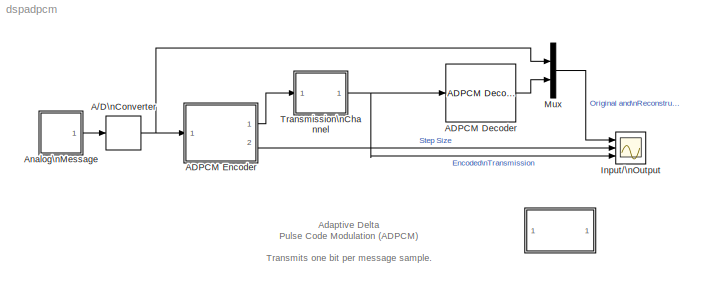
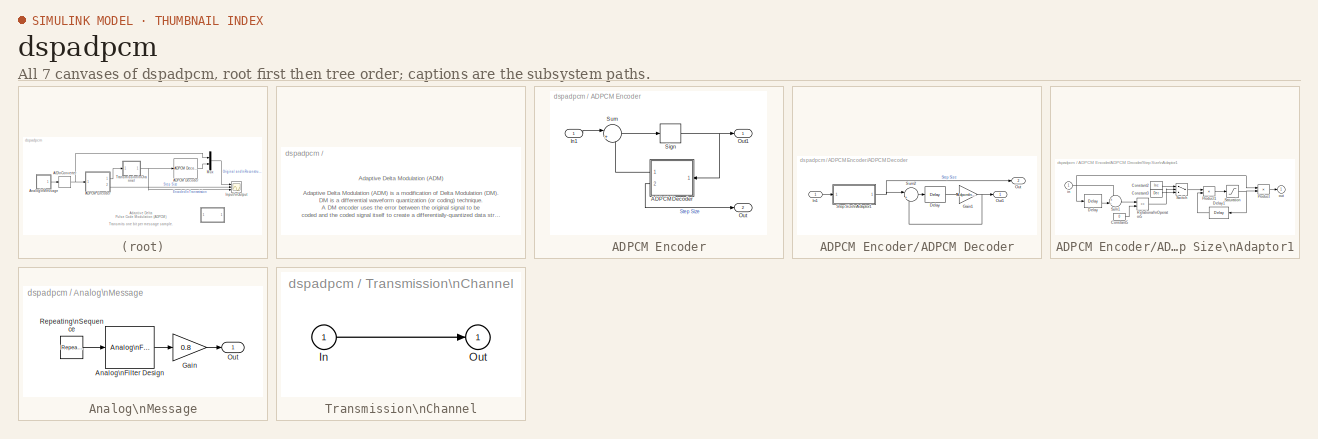
[diagram: thumbnail index - all 7 canvases of the model, root first then tree order]
MODEL dspadpcm
KIND model
CONFIG AbsTol = 1e-6
CONFIG FixedStep = 1/64000
CONFIG MaxStep = 1/64000
CONFIG MinStep = auto
CONFIG RelTol = 1e-3
CONFIG Solver = ode5
CONFIG SolverMode = SingleTasking
CONFIG StartTime = 0.0
CONFIG StopTime = .1999
BLOCK [SubSystem]  
  MaskDisplay = disp('Info')
  MaskIconFrame = on
  MaskIconOpaque = on
  MaskIconRotate = none
  MaskIconUnits = autoscale
  MaskType = ADPCM Demo Info
  Ports = []
  TreatAsAtomicUnit = off
BLOCK [ZeroOrderHold] A//D\nConverter
  SampleTime = 1/8000
BLOCK [Reference] ADPCM Decoder  REF=dspwvfmcdlib/ADPCM Decoder
  AdpcmIntTau = 0.99
  Ports = [1, 1]
  SourceBlock = dspwvfmcdlib/ADPCM Decoder
  SourceType = ADPCM Decoder
  StepAttn = .5
  StepGain = 2
  StepInit = 0.1
  StepMax = 0.5
  StepMin = 0.01
BLOCK [SubSystem] ADPCM Encoder
  AncestorBlock = dspwvfmcdlib/ADPCM Encoder
  MaskCallbackString = |||||
  MaskDisplay = disp('ADPCM\\nEncoder')
  MaskEnableString = on,on,on,on,on,on
  MaskIconFrame = on
  MaskIconOpaque = on
  MaskIconRotate = none
  MaskIconUnits = autoscale
  MaskPromptString = Step-size attenuation|Step-size gain|Maximum step size|Minimum step size|Initial step size|Integrator time constant
  MaskStyleString = edit,edit,edit,edit,edit,edit
  MaskToolTipString = on,on,on,on,on,on
  MaskTunableValueString = on,on,on,on,on,on
  MaskType = ADPCM Encoder
  MaskValueString = .5|2|0.5|0.01|0.1|0.99
  MaskVarAliasString = ,,,,,
  MaskVariables = EncStepAttn=@1;EncStepGain=@2;EncStepMax=@3;EncStepMin=@4;EncStepInit=@5;EncIntTau=@6;
  MaskVisibilityString = on,on,on,on,on,on
  Ports = [1, 2]
  TreatAsAtomicUnit = off
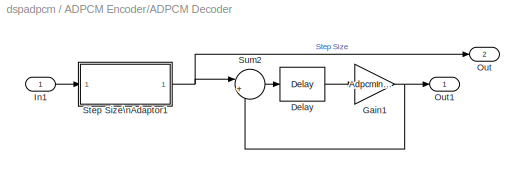
BLOCK [SubSystem] ADPCM Encoder/ADPCM Decoder
  AncestorBlock = dspwvfmcdlib/ADPCM Decoder
  MaskCallbackString = |||||
  MaskDisplay = disp('ADPCM\\nDecoder')
  MaskEnableString = on,on,on,on,on,on
  MaskIconFrame = on
  MaskIconOpaque = on
  MaskIconRotate = none
  MaskIconUnits = autoscale
  MaskPromptString = Step-size attenuation|Step-size gain|Maximum step size|Minimum step size|Initial step size|Integrator time constant
  MaskStyleString = edit,edit,edit,edit,edit,edit
  MaskToolTipString = on,on,on,on,on,on
  MaskTunableValueString = on,on,on,on,on,on
  MaskType = ADPCM Decoder
  MaskValueString = EncStepAttn|EncStepGain|EncStepMax|EncStepMin|EncStepInit|EncIntTau
  MaskVarAliasString = ,,,,,
  MaskVariables = StepAttn=@1;StepGain=@2;StepMax=@3;StepMin=@4;StepInit=@5;AdpcmIntTau=@6;
  MaskVisibilityString = on,on,on,on,on,on
  Ports = [1, 2]
  TreatAsAtomicUnit = off
BLOCK [Reference] ADPCM Encoder/ADPCM Decoder/Delay  REF=dspsigops/Delay
  Ports = [1, 1]
  SourceBlock = dspsigops/Delay
  SourceType = Delay
  delay = 1
  dif_ic_for_ch = off
  dif_ic_for_dly = off
  dly_unit = Samples
  ic = 0
  ic_detail = on
  reset_popup = None
BLOCK [Gain] ADPCM Encoder/ADPCM Decoder/Gain1
  Gain = AdpcmIntTau
BLOCK [Inport] ADPCM Encoder/ADPCM Decoder/In1
BLOCK [Outport] ADPCM Encoder/ADPCM Decoder/Out
  Port = 2
BLOCK [Outport] ADPCM Encoder/ADPCM Decoder/Out1
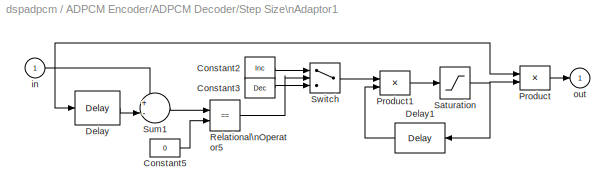
BLOCK [SubSystem] ADPCM Encoder/ADPCM Decoder/Step Size\nAdaptor1
  MaskCallbackString = ||||
  MaskDescription = Step-size logic
  MaskDisplay = disp('Step Size\\nAdaptation')
  MaskEnableString = on,on,on,on,on
  MaskIconFrame = on
  MaskIconOpaque = on
  MaskIconRotate = none
  MaskIconUnits = autoscale
  MaskPromptString = Step-size attenuation factor:|Step-size gain factor:|Maximum step size:|Minimum step size:|Initial step size:
  MaskStyleString = edit,edit,edit,edit,edit
  MaskToolTipString = on,on,on,on,on
  MaskTunableValueString = on,on,on,on,on
  MaskType = Step-size adaptation
  MaskValueString = StepAttn|StepGain|StepMax|StepMin|StepInit
  MaskVarAliasString = ,,,,
  MaskVariables = Dec=@1;Inc=@2;MaxStep=@3;MinStep=@4;InitStep=@5;
  MaskVisibilityString = on,on,on,on,on
  Ports = [1, 1]
  ShowPortLabels = off
  TreatAsAtomicUnit = off
BLOCK [Constant] ADPCM Encoder/ADPCM Decoder/Step Size\nAdaptor1/Constant2
  Value = Inc
BLOCK [Constant] ADPCM Encoder/ADPCM Decoder/Step Size\nAdaptor1/Constant3
  Value = Dec
BLOCK [Constant] ADPCM Encoder/ADPCM Decoder/Step Size\nAdaptor1/Constant5
  Value = 0
BLOCK [Reference] ADPCM Encoder/ADPCM Decoder/Step Size\nAdaptor1/Delay  REF=dspsigops/Delay
  Ports = [1, 1]
  SourceBlock = dspsigops/Delay
  SourceType = Delay
  delay = 1
  dif_ic_for_ch = off
  dif_ic_for_dly = off
  dly_unit = Samples
  ic = 0
  ic_detail = on
  reset_popup = None
BLOCK [Reference] ADPCM Encoder/ADPCM Decoder/Step Size\nAdaptor1/Delay1  REF=dspsigops/Delay
  Ports = [1, 1]
  SourceBlock = dspsigops/Delay
  SourceType = Delay
  delay = 1
  dif_ic_for_ch = off
  dif_ic_for_dly = off
  dly_unit = Samples
  ic = 0
  ic_detail = on
  reset_popup = None
BLOCK [Product] ADPCM Encoder/ADPCM Decoder/Step Size\nAdaptor1/Product
  Ports = [2, 1]
BLOCK [Product] ADPCM Encoder/ADPCM Decoder/Step Size\nAdaptor1/Product1
  Ports = [2, 1]
BLOCK [RelationalOperator] ADPCM Encoder/ADPCM Decoder/Step Size\nAdaptor1/Relational\nOperator5
  Operator = ==
BLOCK [Saturate] ADPCM Encoder/ADPCM Decoder/Step Size\nAdaptor1/Saturation
  LowerLimit = MinStep
  UpperLimit = MaxStep
BLOCK [Sum] ADPCM Encoder/ADPCM Decoder/Step Size\nAdaptor1/Sum1
  IconShape = round
  Inputs = +-|
  Ports = [2, 1]
BLOCK [Switch] ADPCM Encoder/ADPCM Decoder/Step Size\nAdaptor1/Switch
  Threshold = 1
BLOCK [Inport] ADPCM Encoder/ADPCM Decoder/Step Size\nAdaptor1/in
BLOCK [Outport] ADPCM Encoder/ADPCM Decoder/Step Size\nAdaptor1/out
  InitialOutput = 0
BLOCK [Sum] ADPCM Encoder/ADPCM Decoder/Sum2
  IconShape = round
  Inputs = |++
  Ports = [2, 1]
BLOCK [Inport] ADPCM Encoder/In1
BLOCK [Outport] ADPCM Encoder/Out
  Port = 2
BLOCK [Outport] ADPCM Encoder/Out1
BLOCK [Signum] ADPCM Encoder/Sign
BLOCK [Sum] ADPCM Encoder/Sum
  IconShape = round
  Inputs = |+-
  Ports = [2, 1]
BLOCK [SubSystem] Analog\nMessage
  Ports = [0, 1]
  TreatAsAtomicUnit = off
BLOCK [Reference] Analog\nMessage/Analog\nFilter Design  REF=dsparch3/Analog\nFilter Design
  N = 5
  Ports = [1, 1]
  Rp = 2
  Rs = 40
  SourceBlock = dsparch3/Analog\nFilter Design
  SourceType = Analog Filter Design
  Whi = 80
  Wlo = 2*pi*400
  filttype = Lowpass
  method = Butterworth
BLOCK [Gain] Analog\nMessage/Gain
  Gain = 0.8
BLOCK [Outport] Analog\nMessage/Out
  InitialOutput = 0
BLOCK [Reference] Analog\nMessage/Repeating\nSequence  REF=simulink3/Sources/Repeating\nSequence
  Ports = [0, 1]
  SourceBlock = simulink3/Sources/Repeating\nSequence
  SourceType = Repeating table
  rep_seq_t = [0 .005 .005 .015 .015 .02]
  rep_seq_y = [1 1 -1 -1 1 1]
BLOCK [Scope] Input//\nOutput
  DataFormat = Array
  NumInputPorts = 3
  Ports = [3]
  TimeRange = 0.02
  YMax = 1.25~0.75~1.2
  YMin = -1.25~-0.75~-1.2
BLOCK [Mux] Mux
  DisplayOption = bar
  Inputs = 2
  Ports = [2, 1]
BLOCK [SubSystem] Transmission\nChannel
  Ports = [1, 1]
  TreatAsAtomicUnit = off
BLOCK [Inport] Transmission\nChannel/In
BLOCK [Outport] Transmission\nChannel/Out
  InitialOutput = 0
ANNOTATION (root): Adaptive Delta\nPulse Code Modulation (ADPCM)\n\nTransmits one bit per message sample.
ANNOTATION  : Adaptive Delta Modulation (ADM)\n\nAdaptive Delta Modulation (ADM) is a modification of Delta Modulation (DM).\nDM is a differential waveform quantization (or coding) technique.\nA DM encoder uses the error between the original signal to be\ncoded and the coded signal itself to create a differentially-quantized data stream.\nThis data stream (usually the computer error signal) is a lower-bit-rate ...<+734ch>
NET A//D\nConverter:1 -> ADPCM Encoder:1, Mux:1
LINE ADPCM Decoder:1 -> Mux:2
LINE ADPCM Encoder/ADPCM Decoder/Delay:1 -> ADPCM Encoder/ADPCM Decoder/Gain1:1
NET ADPCM Encoder/ADPCM Decoder/Gain1:1 -> ADPCM Encoder/ADPCM Decoder/Out1:1, ADPCM Encoder/ADPCM Decoder/Sum2:2
LINE ADPCM Encoder/ADPCM Decoder/In1:1 -> ADPCM Encoder/ADPCM Decoder/Step Size\nAdaptor1:1
LINE ADPCM Encoder/ADPCM Decoder/Step Size\nAdaptor1/Constant2:1 -> ADPCM Encoder/ADPCM Decoder/Step Size\nAdaptor1/Switch:1
LINE ADPCM Encoder/ADPCM Decoder/Step Size\nAdaptor1/Constant3:1 -> ADPCM Encoder/ADPCM Decoder/Step Size\nAdaptor1/Switch:3
LINE ADPCM Encoder/ADPCM Decoder/Step Size\nAdaptor1/Constant5:1 -> ADPCM Encoder/ADPCM Decoder/Step Size\nAdaptor1/Relational\nOperator5:2
LINE ADPCM Encoder/ADPCM Decoder/Step Size\nAdaptor1/Delay1:1 -> ADPCM Encoder/ADPCM Decoder/Step Size\nAdaptor1/Product1:2
LINE ADPCM Encoder/ADPCM Decoder/Step Size\nAdaptor1/Delay:1 -> ADPCM Encoder/ADPCM Decoder/Step Size\nAdaptor1/Sum1:2
LINE ADPCM Encoder/ADPCM Decoder/Step Size\nAdaptor1/Product1:1 -> ADPCM Encoder/ADPCM Decoder/Step Size\nAdaptor1/Saturation:1
LINE ADPCM Encoder/ADPCM Decoder/Step Size\nAdaptor1/Product:1 -> ADPCM Encoder/ADPCM Decoder/Step Size\nAdaptor1/out:1
LINE ADPCM Encoder/ADPCM Decoder/Step Size\nAdaptor1/Relational\nOperator5:1 -> ADPCM Encoder/ADPCM Decoder/Step Size\nAdaptor1/Switch:2
NET ADPCM Encoder/ADPCM Decoder/Step Size\nAdaptor1/Saturation:1 -> ADPCM Encoder/ADPCM Decoder/Step Size\nAdaptor1/Delay1:1, ADPCM Encoder/ADPCM Decoder/Step Size\nAdaptor1/Product:2
LINE ADPCM Encoder/ADPCM Decoder/Step Size\nAdaptor1/Sum1:1 -> ADPCM Encoder/ADPCM Decoder/Step Size\nAdaptor1/Relational\nOperator5:1
LINE ADPCM Encoder/ADPCM Decoder/Step Size\nAdaptor1/Switch:1 -> ADPCM Encoder/ADPCM Decoder/Step Size\nAdaptor1/Product1:1
NET ADPCM Encoder/ADPCM Decoder/Step Size\nAdaptor1/in:1 -> ADPCM Encoder/ADPCM Decoder/Step Size\nAdaptor1/Delay:1, ADPCM Encoder/ADPCM Decoder/Step Size\nAdaptor1/Product:1, ADPCM Encoder/ADPCM Decoder/Step Size\nAdaptor1/Sum1:1
NET ADPCM Encoder/ADPCM Decoder/Step Size\nAdaptor1:1 -> ADPCM Encoder/ADPCM Decoder/Out:1, ADPCM Encoder/ADPCM Decoder/Sum2:1
LINE ADPCM Encoder/ADPCM Decoder/Sum2:1 -> ADPCM Encoder/ADPCM Decoder/Delay:1
LINE ADPCM Encoder/ADPCM Decoder:1 -> ADPCM Encoder/Sum:2
LINE ADPCM Encoder/ADPCM Decoder:2 -> ADPCM Encoder/Out:1
LINE ADPCM Encoder/In1:1 -> ADPCM Encoder/Sum:1
NET ADPCM Encoder/Sign:1 -> ADPCM Encoder/ADPCM Decoder:1, ADPCM Encoder/Out1:1
LINE ADPCM Encoder/Sum:1 -> ADPCM Encoder/Sign:1
LINE ADPCM Encoder:1 -> Transmission\nChannel:1
LINE ADPCM Encoder:2 -> Input//\nOutput:2
LINE Analog\nMessage/Analog\nFilter Design:1 -> Analog\nMessage/Gain:1
LINE Analog\nMessage/Gain:1 -> Analog\nMessage/Out:1
LINE Analog\nMessage/Repeating\nSequence:1 -> Analog\nMessage/Analog\nFilter Design:1
LINE Analog\nMessage:1 -> A//D\nConverter:1
LINE Mux:1 -> Input//\nOutput:1
LINE Transmission\nChannel/In:1 -> Transmission\nChannel/Out:1
NET Transmission\nChannel:1 -> ADPCM Decoder:1, Input//\nOutput:3
note: NET lines group one-source signal fan-out (src -> all destinations, sorted); 1:1 wires keep LINE
